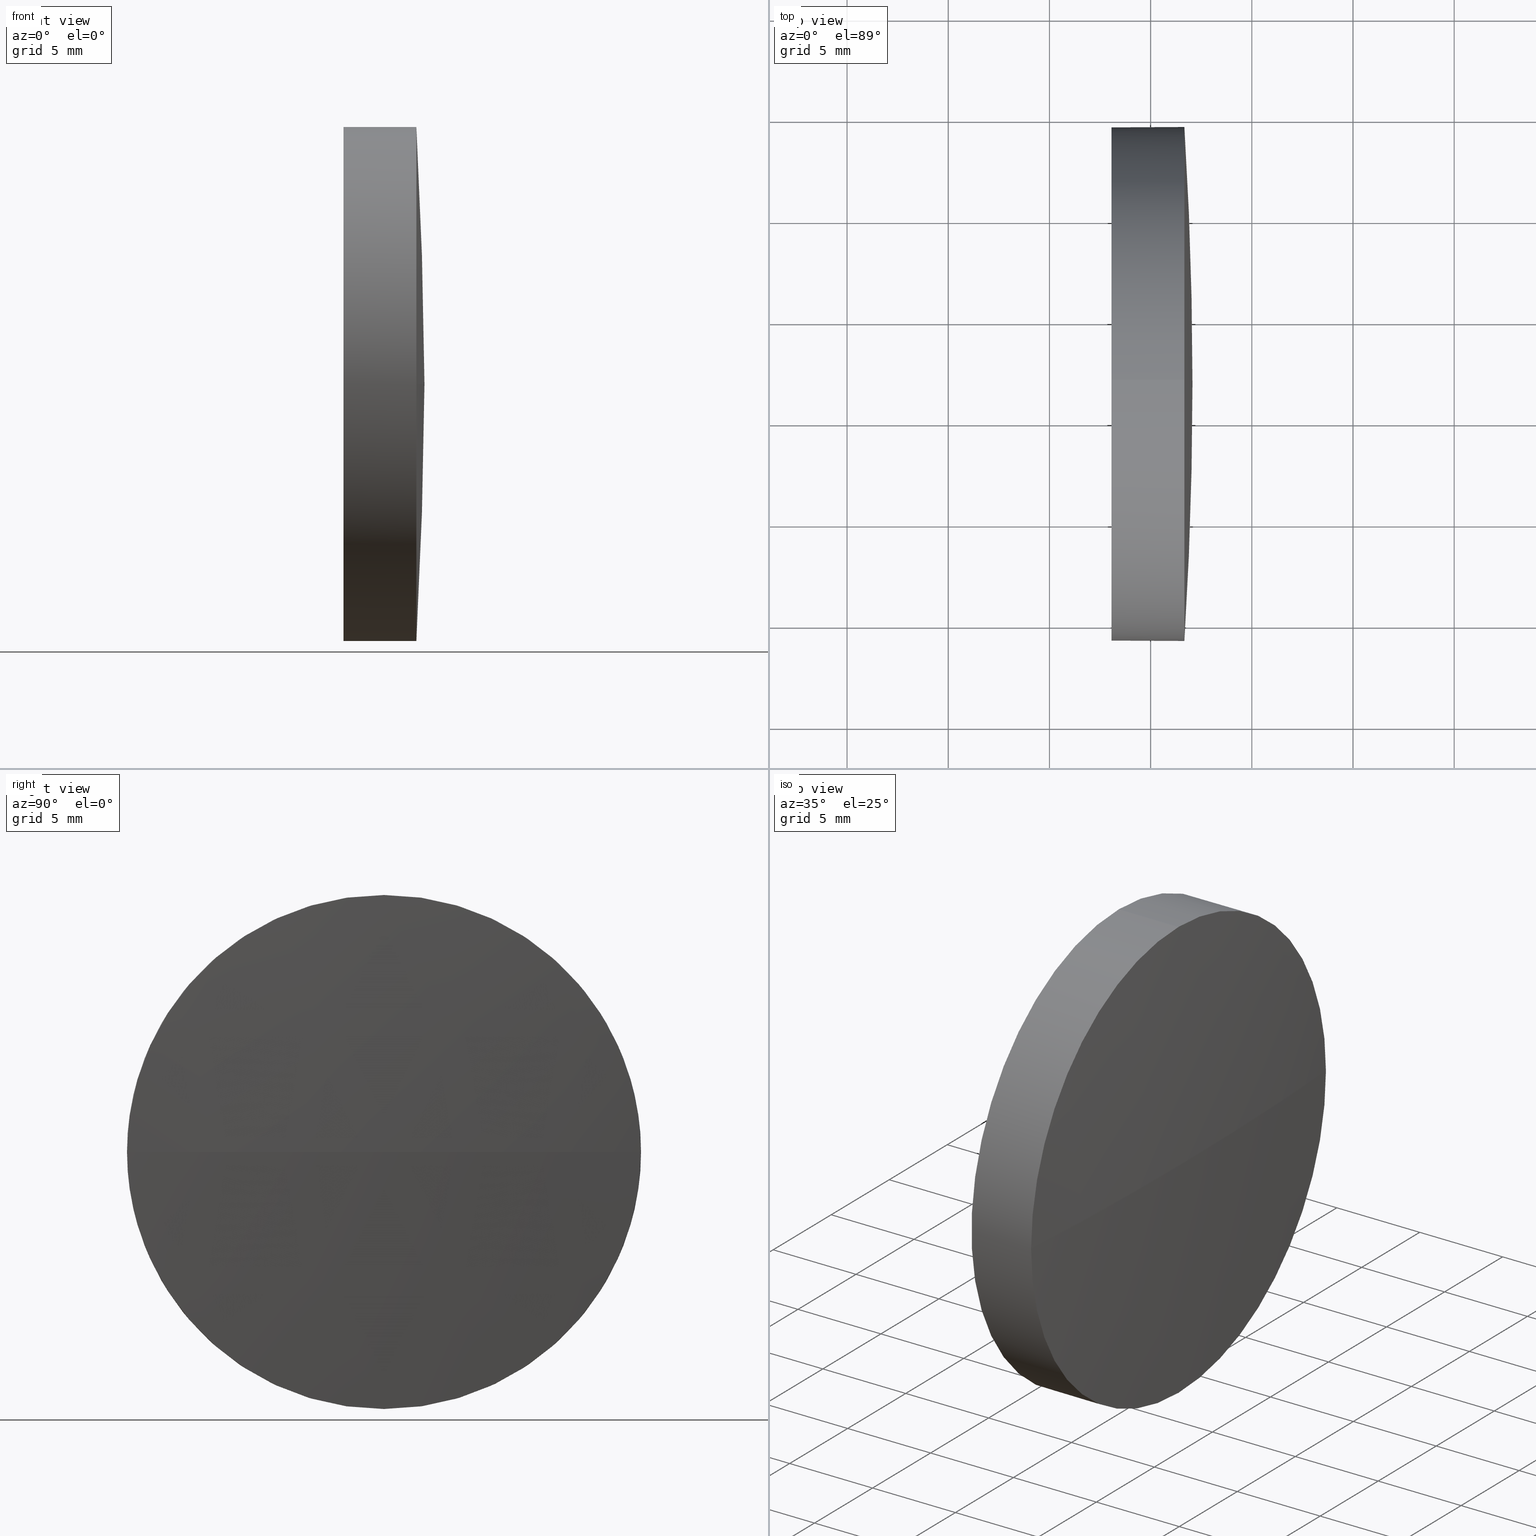
[diagram: canonical four-view strip — front | top / right | iso, engineering-drawing reading convention]
A machine part, canonical four-view strip (front | top / right | iso — engineering-drawing reading convention). The complete STEP part file that produces these views, byte-faithful:
ISO-10303-21;
HEADER;
FILE_DESCRIPTION (( 'STEP AP214' ),
    '1' );
FILE_NAME ('100471.STEP',
    '2019-06-11T05:32:44',
    ( '' ),
    ( '' ),
    'SwSTEP 2.0',
    'SolidWorks 2016',
    '' );
FILE_SCHEMA (( 'AUTOMOTIVE_DESIGN' ));
ENDSEC;

DATA;
#1 = PRODUCT_DEFINITION_FORMATION_WITH_SPECIFIED_SOURCE ( '�κ�', '', #41, .NOT_KNOWN. ) ;
#2 =( NAMED_UNIT ( * ) SI_UNIT ( $, .STERADIAN. ) SOLID_ANGLE_UNIT ( ) );
#3 = AXIS2_PLACEMENT_3D ( 'NONE', #113, #185, #67 ) ;
#4 = ORIENTED_EDGE ( 'NONE', *, *, #117, .F. ) ;
#5 = AXIS2_PLACEMENT_3D ( 'NONE', #108, #26, #8 ) ;
#6 = PLANE ( 'NONE',  #21 ) ;
#7 = VERTEX_POINT ( 'NONE', #74 ) ;
#8 = DIRECTION ( 'NONE',  ( 0.0000000000000000000, 0.0000000000000000000, 1.000000000000000000 ) ) ;
#9 = AXIS2_PLACEMENT_3D ( 'NONE', #25, #79, #62 ) ;
#10 = DIRECTION ( 'NONE',  ( -0.0000000000000000000, 0.0000000000000000000, 1.000000000000000000 ) ) ;
#11 = DIRECTION ( 'NONE',  ( -0.0000000000000000000, 0.0000000000000000000, -1.000000000000000000 ) ) ;
#12 =( LENGTH_UNIT ( ) NAMED_UNIT ( * ) SI_UNIT ( .MILLI., .METRE. ) );
#13 = PRODUCT_RELATED_PRODUCT_CATEGORY ( 'part', '', ( #41 ) ) ;
#14 = VERTEX_POINT ( 'NONE', #143 ) ;
#15 =( GEOMETRIC_REPRESENTATION_CONTEXT ( 3 ) GLOBAL_UNCERTAINTY_ASSIGNED_CONTEXT ( ( #30 ) ) GLOBAL_UNIT_ASSIGNED_CONTEXT ( ( #34, #161, #2 ) ) REPRESENTATION_CONTEXT ( 'NONE', 'WORKASPACE' ) );
#16 = EDGE_CURVE ( 'NONE', #7, #86, #87, .T. ) ;
#17 = CIRCLE ( 'NONE', #60, 201.8124999999973600 ) ;
#18 = FILL_AREA_STYLE_COLOUR ( '', #138 ) ;
#19 = CIRCLE ( 'NONE', #5, 12.69999999999998900 ) ;
#20 = ORIENTED_EDGE ( 'NONE', *, *, #115, .T. ) ;
#21 = AXIS2_PLACEMENT_3D ( 'NONE', #75, #80, #167 ) ;
#22 = ORIENTED_EDGE ( 'NONE', *, *, #99, .T. ) ;
#23 = LINE ( 'NONE', #42, #128 ) ;
#24 = ORIENTED_EDGE ( 'NONE', *, *, #16, .F. ) ;
#25 = CARTESIAN_POINT ( 'NONE',  ( 342.3303058320414600, 151.8395787280306900, 0.0000000000000000000 ) ) ;
#26 = DIRECTION ( 'NONE',  ( -1.000000000000000000, -0.0000000000000000000, -0.0000000000000000000 ) ) ;
#27 = VERTEX_POINT ( 'NONE', #166 ) ;
#28 = DIRECTION ( 'NONE',  ( 1.000000000000000000, 0.0000000000000000000, 0.0000000000000000000 ) ) ;
#29 = EDGE_CURVE ( 'NONE', #14, #49, #114, .T. ) ;
#30 = UNCERTAINTY_MEASURE_WITH_UNIT (LENGTH_MEASURE( 1.000000000000000100E-005 ), #34, 'distance_accuracy_value', 'NONE');
#31 = ORIENTED_EDGE ( 'NONE', *, *, #16, .T. ) ;
#32 =( NAMED_UNIT ( * ) SI_UNIT ( $, .STERADIAN. ) SOLID_ANGLE_UNIT ( ) );
#33 = AXIS2_PLACEMENT_3D ( 'NONE', #55, #169, #132 ) ;
#34 =( LENGTH_UNIT ( ) NAMED_UNIT ( * ) SI_UNIT ( .MILLI., .METRE. ) );
#35 = APPLICATION_CONTEXT ( 'automotive_design' ) ;
#36 = ADVANCED_BREP_SHAPE_REPRESENTATION ( '100471', ( #156, #3 ), #121 ) ;
#37 = ORIENTED_EDGE ( 'NONE', *, *, #29, .T. ) ;
#38 = ORIENTED_EDGE ( 'NONE', *, *, #152, .T. ) ;
#39 = ADVANCED_FACE ( 'NONE', ( #141 ), #6, .F. ) ;
#40 = EDGE_LOOP ( 'NONE', ( #37, #22 ) ) ;
#41 = PRODUCT ( '100471', '100471', '', ( #65 ) ) ;
#42 = CARTESIAN_POINT ( 'NONE',  ( 342.3303058320414600, 151.8395787280306900, 12.69999999999998900 ) ) ;
#43 = FILL_AREA_STYLE_COLOUR ( '', #97 ) ;
#44 = SPHERICAL_SURFACE ( 'NONE', #150, 201.8124999999973600 ) ;
#45 = LINE ( 'NONE', #133, #101 ) ;
#46 = DIRECTION ( 'NONE',  ( 0.0000000000000000000, 0.0000000000000000000, 1.000000000000000000 ) ) ;
#47 =( NAMED_UNIT ( * ) PLANE_ANGLE_UNIT ( ) SI_UNIT ( $, .RADIAN. ) );
#48 = SURFACE_STYLE_USAGE ( .BOTH. , #149 ) ;
#49 = VERTEX_POINT ( 'NONE', #146 ) ;
#50 = AXIS2_PLACEMENT_3D ( 'NONE', #148, #180, #46 ) ;
#51 = SHAPE_DEFINITION_REPRESENTATION ( #176, #36 ) ;
#52 = DIRECTION ( 'NONE',  ( 0.0000000000000000000, 1.000000000000000000, 0.0000000000000000000 ) ) ;
#53 = ORIENTED_EDGE ( 'NONE', *, *, #159, .F. ) ;
#54 = AXIS2_PLACEMENT_3D ( 'NONE', #160, #11, #83 ) ;
#55 = CARTESIAN_POINT ( 'NONE',  ( 348.0685238677178300, 151.8395787280306900, 0.0000000000000000000 ) ) ;
#56 = ADVANCED_FACE ( 'NONE', ( #59 ), #94, .T. ) ;
#57 = CARTESIAN_POINT ( 'NONE',  ( 351.6685238677177400, 164.5395787280306200, 0.0000000000000000000 ) ) ;
#58 = ADVANCED_FACE ( 'NONE', ( #68 ), #186, .T. ) ;
#59 = FACE_OUTER_BOUND ( 'NONE', #112, .T. ) ;
#60 = AXIS2_PLACEMENT_3D ( 'NONE', #107, #10, #28 ) ;
#61 = DIRECTION ( 'NONE',  ( -1.000000000000000000, -0.0000000000000000000, -0.0000000000000000000 ) ) ;
#62 = DIRECTION ( 'NONE',  ( 0.0000000000000000000, 0.0000000000000000000, 1.000000000000000000 ) ) ;
#63 = CIRCLE ( 'NONE', #77, 12.69999999999998900 ) ;
#64 = CARTESIAN_POINT ( 'NONE',  ( 150.2560238677204400, 151.8395787280305200, 0.0000000000000000000 ) ) ;
#65 = PRODUCT_CONTEXT ( 'NONE', #35, 'mechanical' ) ;
#66 = AXIS2_PLACEMENT_3D ( 'NONE', #64, #116, #111 ) ;
#67 = DIRECTION ( 'NONE',  ( 1.000000000000000000, 0.0000000000000000000, 0.0000000000000000000 ) ) ;
#68 = FACE_OUTER_BOUND ( 'NONE', #142, .T. ) ;
#69 =( NAMED_UNIT ( * ) PLANE_ANGLE_UNIT ( ) SI_UNIT ( $, .RADIAN. ) );
#70 = STYLED_ITEM ( 'NONE', ( #125 ), #36 ) ;
#71 = ORIENTED_EDGE ( 'NONE', *, *, #115, .F. ) ;
#72 = STYLED_ITEM ( 'NONE', ( #163 ), #156 ) ;
#73 = ORIENTED_EDGE ( 'NONE', *, *, #159, .T. ) ;
#74 = CARTESIAN_POINT ( 'NONE',  ( 351.6685238677177900, 151.8395787280306900, 12.69999999999998900 ) ) ;
#75 = CARTESIAN_POINT ( 'NONE',  ( 348.0685238677178300, 151.8395787280306900, 0.0000000000000000000 ) ) ;
#76 = CARTESIAN_POINT ( 'NONE',  ( 352.0685238677178300, 151.8395787280305200, 0.0000000000000000000 ) ) ;
#77 = AXIS2_PLACEMENT_3D ( 'NONE', #81, #92, #106 ) ;
#78 = ORIENTED_EDGE ( 'NONE', *, *, #152, .F. ) ;
#79 = DIRECTION ( 'NONE',  ( -1.000000000000000000, -0.0000000000000000000, -0.0000000000000000000 ) ) ;
#80 = DIRECTION ( 'NONE',  ( 1.000000000000000000, 0.0000000000000000000, 0.0000000000000000000 ) ) ;
#81 = CARTESIAN_POINT ( 'NONE',  ( 351.6685238677177900, 151.8395787280306900, 0.0000000000000000000 ) ) ;
#82 = SURFACE_STYLE_FILL_AREA ( #95 ) ;
#83 = DIRECTION ( 'NONE',  ( 0.0000000000000000000, 1.000000000000000000, 0.0000000000000000000 ) ) ;
#84 =( NAMED_UNIT ( * ) SI_UNIT ( $, .STERADIAN. ) SOLID_ANGLE_UNIT ( ) );
#85 = DIRECTION ( 'NONE',  ( -1.000000000000000000, -0.0000000000000000000, -0.0000000000000000000 ) ) ;
#86 = VERTEX_POINT ( 'NONE', #57 ) ;
#87 = CIRCLE ( 'NONE', #164, 12.69999999999998900 ) ;
#88 = UNCERTAINTY_MEASURE_WITH_UNIT (LENGTH_MEASURE( 1.000000000000000100E-005 ), #135, 'distance_accuracy_value', 'NONE');
#89 = ORIENTED_EDGE ( 'NONE', *, *, #172, .F. ) ;
#90 = CARTESIAN_POINT ( 'NONE',  ( 351.6685238677177900, 151.8395787280306900, 0.0000000000000000000 ) ) ;
#91 = ADVANCED_FACE ( 'NONE', ( #103 ), #153, .T. ) ;
#92 = DIRECTION ( 'NONE',  ( -1.000000000000000000, -0.0000000000000000000, -0.0000000000000000000 ) ) ;
#93 = SURFACE_STYLE_FILL_AREA ( #136 ) ;
#94 = CYLINDRICAL_SURFACE ( 'NONE', #50, 12.69999999999998900 ) ;
#95 = FILL_AREA_STYLE ('',( #43 ) ) ;
#96 = APPLICATION_PROTOCOL_DEFINITION ( 'draft international standard', 'automotive_design', 1998, #35 ) ;
#97 = COLOUR_RGB ( '',1.000000000000000000, 1.000000000000000000, 1.000000000000000000 ) ;
#98 = ORIENTED_EDGE ( 'NONE', *, *, #99, .F. ) ;
#99 = EDGE_CURVE ( 'NONE', #49, #14, #157, .T. ) ;
#100 = DIRECTION ( 'NONE',  ( -0.0000000000000000000, 0.0000000000000000000, -1.000000000000000000 ) ) ;
#101 = VECTOR ( 'NONE', #61, 1000.000000000000000 ) ;
#102 = EDGE_CURVE ( 'NONE', #179, #27, #63, .T. ) ;
#103 = FACE_OUTER_BOUND ( 'NONE', #154, .T. ) ;
#104 = ORIENTED_EDGE ( 'NONE', *, *, #139, .F. ) ;
#105 = DIRECTION ( 'NONE',  ( 0.0000000000000000000, 0.0000000000000000000, 1.000000000000000000 ) ) ;
#106 = DIRECTION ( 'NONE',  ( 0.0000000000000000000, 0.0000000000000000000, 1.000000000000000000 ) ) ;
#107 = CARTESIAN_POINT ( 'NONE',  ( 150.2560238677204400, 151.8395787280305200, 0.0000000000000000000 ) ) ;
#108 = CARTESIAN_POINT ( 'NONE',  ( 351.6685238677177900, 151.8395787280306900, 0.0000000000000000000 ) ) ;
#109 = SURFACE_STYLE_USAGE ( .BOTH. , #183 ) ;
#110 = APPLICATION_CONTEXT ( 'automotive_design' ) ;
#111 = DIRECTION ( 'NONE',  ( 0.0000000000000000000, 1.000000000000000000, 1.224646799147353200E-016 ) ) ;
#112 = EDGE_LOOP ( 'NONE', ( #119, #38, #118, #4, #31 ) ) ;
#113 = CARTESIAN_POINT ( 'NONE',  ( 0.0000000000000000000, 0.0000000000000000000, 0.0000000000000000000 ) ) ;
#114 = CIRCLE ( 'NONE', #181, 12.69999999999998900 ) ;
#115 = EDGE_CURVE ( 'NONE', #27, #7, #19, .T. ) ;
#116 = DIRECTION ( 'NONE',  ( 0.0000000000000000000, 1.224646799147353200E-016, -1.000000000000000000 ) ) ;
#117 = EDGE_CURVE ( 'NONE', #7, #14, #23, .T. ) ;
#118 = ORIENTED_EDGE ( 'NONE', *, *, #29, .F. ) ;
#119 = ORIENTED_EDGE ( 'NONE', *, *, #172, .T. ) ;
#120 = DIRECTION ( 'NONE',  ( -1.000000000000000000, -0.0000000000000000000, -0.0000000000000000000 ) ) ;
#121 =( GEOMETRIC_REPRESENTATION_CONTEXT ( 3 ) GLOBAL_UNCERTAINTY_ASSIGNED_CONTEXT ( ( #88 ) ) GLOBAL_UNIT_ASSIGNED_CONTEXT ( ( #135, #69, #84 ) ) REPRESENTATION_CONTEXT ( 'NONE', 'WORKASPACE' ) );
#122 = ORIENTED_EDGE ( 'NONE', *, *, #102, .T. ) ;
#123 = CARTESIAN_POINT ( 'NONE',  ( 351.6685238677177900, 151.8395787280306900, 0.0000000000000000000 ) ) ;
#124 = PRESENTATION_LAYER_ASSIGNMENT (  '', '', ( #72 ) ) ;
#125 = PRESENTATION_STYLE_ASSIGNMENT (( #48 ) ) ;
#126 = CIRCLE ( 'NONE', #66, 201.8124999999973600 ) ;
#127 = ORIENTED_EDGE ( 'NONE', *, *, #117, .T. ) ;
#128 = VECTOR ( 'NONE', #120, 1000.000000000000000 ) ;
#129 = CLOSED_SHELL ( 'NONE', ( #56, #91, #182, #58, #39 ) ) ;
#130 = PRODUCT_DEFINITION ( 'δ֪', '', #1, #168 ) ;
#131 = CARTESIAN_POINT ( 'NONE',  ( 348.0685238677178300, 151.8395787280306900, 0.0000000000000000000 ) ) ;
#132 = DIRECTION ( 'NONE',  ( 0.0000000000000000000, 0.0000000000000000000, 1.000000000000000000 ) ) ;
#133 = CARTESIAN_POINT ( 'NONE',  ( 342.3303058320414600, 151.8395787280306900, -12.69999999999998900 ) ) ;
#134 = DIRECTION ( 'NONE',  ( -1.000000000000000000, -0.0000000000000000000, -0.0000000000000000000 ) ) ;
#135 =( LENGTH_UNIT ( ) NAMED_UNIT ( * ) SI_UNIT ( .MILLI., .METRE. ) );
#136 = FILL_AREA_STYLE ('',( #18 ) ) ;
#137 = VERTEX_POINT ( 'NONE', #76 ) ;
#138 = COLOUR_RGB ( '',1.000000000000000000, 1.000000000000000000, 1.000000000000000000 ) ;
#139 = EDGE_CURVE ( 'NONE', #137, #86, #17, .T. ) ;
#140 = UNCERTAINTY_MEASURE_WITH_UNIT (LENGTH_MEASURE( 1.000000000000000100E-005 ), #12, 'distance_accuracy_value', 'NONE');
#141 = FACE_OUTER_BOUND ( 'NONE', #40, .T. ) ;
#142 = EDGE_LOOP ( 'NONE', ( #78, #122, #20, #127, #98 ) ) ;
#143 = CARTESIAN_POINT ( 'NONE',  ( 348.0685238677178300, 151.8395787280306900, 12.69999999999998900 ) ) ;
#144 = DIRECTION ( 'NONE',  ( 0.0000000000000000000, 0.0000000000000000000, 1.000000000000000000 ) ) ;
#145 = AXIS2_PLACEMENT_3D ( 'NONE', #123, #85, #173 ) ;
#146 = CARTESIAN_POINT ( 'NONE',  ( 348.0685238677178300, 151.8395787280306900, -12.69999999999998900 ) ) ;
#147 = DIRECTION ( 'NONE',  ( -1.000000000000000000, -0.0000000000000000000, -0.0000000000000000000 ) ) ;
#148 = CARTESIAN_POINT ( 'NONE',  ( 342.3303058320414600, 151.8395787280306900, 0.0000000000000000000 ) ) ;
#149 = SURFACE_SIDE_STYLE ('',( #93 ) ) ;
#150 = AXIS2_PLACEMENT_3D ( 'NONE', #151, #100, #52 ) ;
#151 = CARTESIAN_POINT ( 'NONE',  ( 150.2560238677204400, 151.8395787280305200, 0.0000000000000000000 ) ) ;
#152 = EDGE_CURVE ( 'NONE', #179, #49, #45, .T. ) ;
#153 = SPHERICAL_SURFACE ( 'NONE', #54, 201.8124999999973600 ) ;
#154 = EDGE_LOOP ( 'NONE', ( #104, #73, #165, #89 ) ) ;
#155 = MECHANICAL_DESIGN_GEOMETRIC_PRESENTATION_REPRESENTATION (  '', ( #72 ), #177 ) ;
#156 = MANIFOLD_SOLID_BREP ( '��ת1', #129 ) ;
#157 = CIRCLE ( 'NONE', #33, 12.69999999999998900 ) ;
#158 = EDGE_LOOP ( 'NONE', ( #53, #171, #24, #71 ) ) ;
#159 = EDGE_CURVE ( 'NONE', #137, #27, #126, .T. ) ;
#160 = CARTESIAN_POINT ( 'NONE',  ( 150.2560238677204400, 151.8395787280305200, 0.0000000000000000000 ) ) ;
#161 =( NAMED_UNIT ( * ) PLANE_ANGLE_UNIT ( ) SI_UNIT ( $, .RADIAN. ) );
#162 = PRESENTATION_LAYER_ASSIGNMENT (  '', '', ( #70 ) ) ;
#163 = PRESENTATION_STYLE_ASSIGNMENT (( #109 ) ) ;
#164 = AXIS2_PLACEMENT_3D ( 'NONE', #90, #134, #105 ) ;
#165 = ORIENTED_EDGE ( 'NONE', *, *, #102, .F. ) ;
#166 = CARTESIAN_POINT ( 'NONE',  ( 351.6685238677177400, 139.1395787280305900, -1.555301434917131900E-015 ) ) ;
#167 = DIRECTION ( 'NONE',  ( 0.0000000000000000000, 0.0000000000000000000, -1.000000000000000000 ) ) ;
#168 = PRODUCT_DEFINITION_CONTEXT ( 'detailed design', #110, 'design' ) ;
#169 = DIRECTION ( 'NONE',  ( -1.000000000000000000, -0.0000000000000000000, -0.0000000000000000000 ) ) ;
#170 = CARTESIAN_POINT ( 'NONE',  ( 351.6685238677177900, 151.8395787280306900, -12.69999999999998900 ) ) ;
#171 = ORIENTED_EDGE ( 'NONE', *, *, #139, .T. ) ;
#172 = EDGE_CURVE ( 'NONE', #86, #179, #184, .T. ) ;
#173 = DIRECTION ( 'NONE',  ( 0.0000000000000000000, 0.0000000000000000000, 1.000000000000000000 ) ) ;
#174 = MECHANICAL_DESIGN_GEOMETRIC_PRESENTATION_REPRESENTATION (  '', ( #70 ), #15 ) ;
#175 = APPLICATION_PROTOCOL_DEFINITION ( 'draft international standard', 'automotive_design', 1998, #110 ) ;
#176 = PRODUCT_DEFINITION_SHAPE ( 'NONE', 'NONE',  #130 ) ;
#177 =( GEOMETRIC_REPRESENTATION_CONTEXT ( 3 ) GLOBAL_UNCERTAINTY_ASSIGNED_CONTEXT ( ( #140 ) ) GLOBAL_UNIT_ASSIGNED_CONTEXT ( ( #12, #47, #32 ) ) REPRESENTATION_CONTEXT ( 'NONE', 'WORKASPACE' ) );
#178 = FACE_OUTER_BOUND ( 'NONE', #158, .T. ) ;
#179 = VERTEX_POINT ( 'NONE', #170 ) ;
#180 = DIRECTION ( 'NONE',  ( -1.000000000000000000, -0.0000000000000000000, -0.0000000000000000000 ) ) ;
#181 = AXIS2_PLACEMENT_3D ( 'NONE', #131, #147, #144 ) ;
#182 = ADVANCED_FACE ( 'NONE', ( #178 ), #44, .T. ) ;
#183 = SURFACE_SIDE_STYLE ('',( #82 ) ) ;
#184 = CIRCLE ( 'NONE', #145, 12.69999999999998900 ) ;
#185 = DIRECTION ( 'NONE',  ( 0.0000000000000000000, 0.0000000000000000000, 1.000000000000000000 ) ) ;
#186 = CYLINDRICAL_SURFACE ( 'NONE', #9, 12.69999999999998900 ) ;
ENDSEC;
END-ISO-10303-21;
